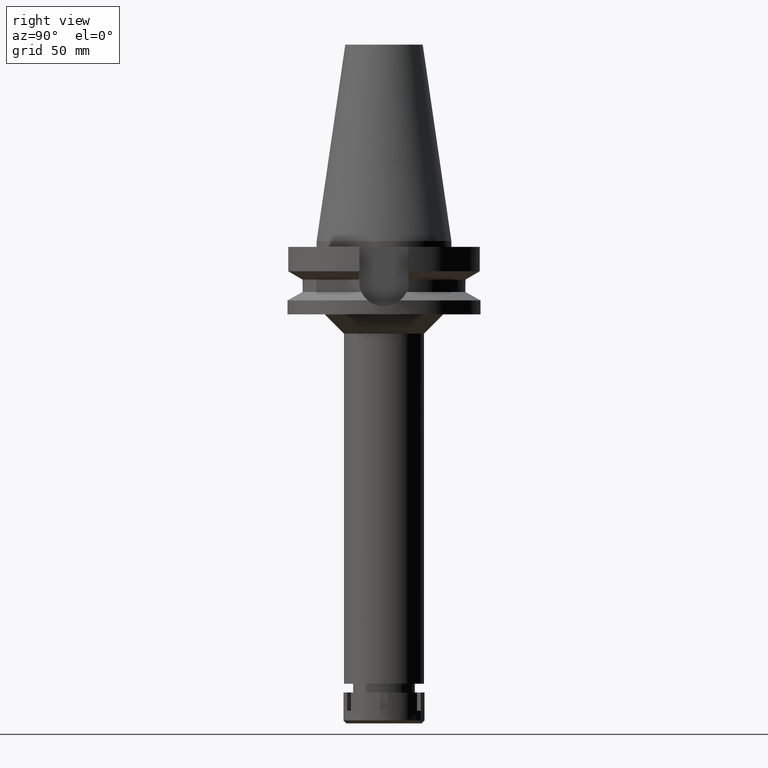
[diagram: clean part render]
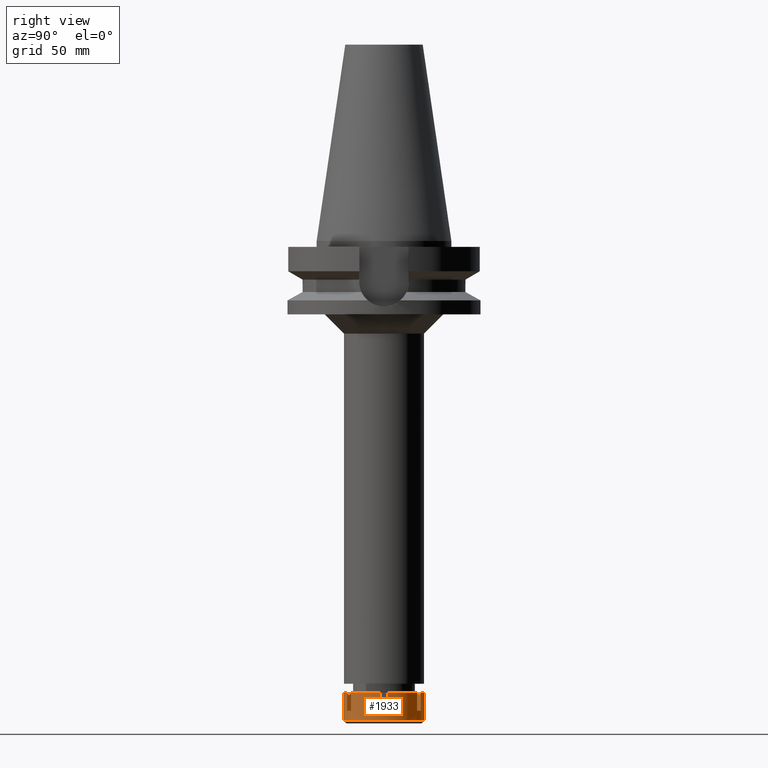
[diagram: same view with one face highlighted and labeled with its STEP entity id]
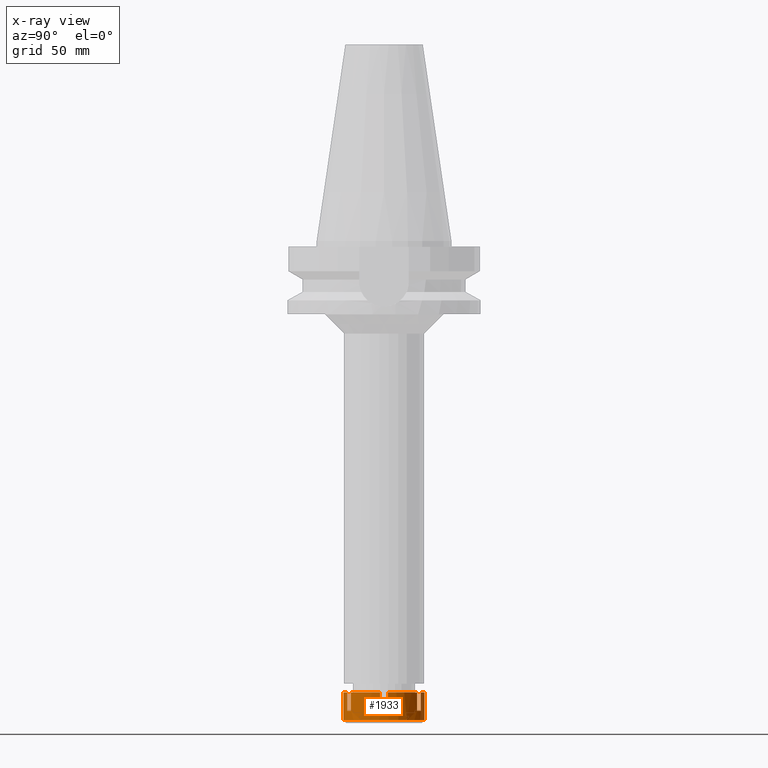
[diagram: x-ray of the same camera — body ghosted, the highlighted face saturated]
A machine part, right view. The second image highlights one B-rep face of the part: STEP entity #1933.
The next image is the same camera in x-ray: the body ghosted, the highlighted face saturated — about 0% of this face is hidden behind the body in this view.
In plain terms, the highlighted cylindrical surface (partial cylindrical patch) has radius 21 mm, axis along (0, 0, -1).
Its self-contained STEP definition (entity closure, byte-faithful):
#7 = CARTESIAN_POINT ( 'NONE',  ( 0.0000000000000000000, 0.0000000000000000000, 0.0000000000000000000 ) ) ;
#17 = ORIENTED_EDGE ( 'NONE', *, *, #3506, .T. ) ;
#30 = DIRECTION ( 'NONE',  ( 0.0000000000000000000, 0.0000000000000000000, -1.000000000000000000 ) ) ;
#50 = CARTESIAN_POINT ( 'NONE',  ( 12.18432328774999895, -17.10386699022999935, 0.0000000000000000000 ) ) ;
#54 = DIRECTION ( 'NONE',  ( 0.0000000000000000000, 0.0000000000000000000, -1.000000000000000000 ) ) ;
#64 = EDGE_CURVE ( 'NONE', #3304, #532, #1567, .T. ) ;
#75 = ORIENTED_EDGE ( 'NONE', *, *, #229, .F. ) ;
#93 = CIRCLE ( 'NONE', #3050, 21.00000000000000711 ) ;
#116 = VECTOR ( 'NONE', #2785, 1000.000000000000000 ) ;
#122 = CYLINDRICAL_SURFACE ( 'NONE', #278, 21.00000000000000000 ) ;
#137 = EDGE_CURVE ( 'NONE', #2713, #532, #334, .T. ) ;
#170 = DIRECTION ( 'NONE',  ( 0.0000000000000000000, 0.0000000000000000000, 1.000000000000000000 ) ) ;
#172 = CARTESIAN_POINT ( 'NONE',  ( 0.0000000000000000000, 0.0000000000000000000, -9.500000000000000000 ) ) ;
#187 = DIRECTION ( 'NONE',  ( 0.0000000000000000000, 0.0000000000000000000, -1.000000000000000000 ) ) ;
#199 = DIRECTION ( 'NONE',  ( 0.5802058708453158298, -0.8144698566777217597, 0.0000000000000000000 ) ) ;
#214 = CARTESIAN_POINT ( 'NONE',  ( 8.720221672615000585, -19.10386699022999935, 0.0000000000000000000 ) ) ;
#229 = EDGE_CURVE ( 'NONE', #1588, #1080, #3395, .T. ) ;
#234 = VERTEX_POINT ( 'NONE', #50 ) ;
#237 = AXIS2_PLACEMENT_3D ( 'NONE', #172, #2105, #730 ) ;
#240 = CARTESIAN_POINT ( 'NONE',  ( 12.18432328774999895, 17.10386699022999935, 0.0000000000000000000 ) ) ;
#274 = EDGE_CURVE ( 'NONE', #1949, #2956, #315, .T. ) ;
#278 = AXIS2_PLACEMENT_3D ( 'NONE', #710, #965, #3114 ) ;
#285 = CARTESIAN_POINT ( 'NONE',  ( 20.90454496036999998, 2.000000000000000000, -9.500000000000000000 ) ) ;
#300 = VERTEX_POINT ( 'NONE', #3215 ) ;
#305 = CARTESIAN_POINT ( 'NONE',  ( 0.0000000000000000000, 0.0000000000000000000, -14.50000000000000000 ) ) ;
#315 = LINE ( 'NONE', #2047, #2255 ) ;
#334 = LINE ( 'NONE', #898, #2198 ) ;
#394 = AXIS2_PLACEMENT_3D ( 'NONE', #2512, #2567, #2796 ) ;
#400 = ORIENTED_EDGE ( 'NONE', *, *, #3462, .T. ) ;
#431 = ORIENTED_EDGE ( 'NONE', *, *, #274, .T. ) ;
#438 = ORIENTED_EDGE ( 'NONE', *, *, #1612, .F. ) ;
#452 = VECTOR ( 'NONE', #187, 1000.000000000000000 ) ;
#456 = CIRCLE ( 'NONE', #2188, 20.99999999999999289 ) ;
#485 = ORIENTED_EDGE ( 'NONE', *, *, #1226, .T. ) ;
#532 = VERTEX_POINT ( 'NONE', #658 ) ;
#575 = VERTEX_POINT ( 'NONE', #1770 ) ;
#584 = CIRCLE ( 'NONE', #1981, 21.00000000000000000 ) ;
#658 = CARTESIAN_POINT ( 'NONE',  ( 8.720221672615000585, 19.10386699022999935, 0.0000000000000000000 ) ) ;
#710 = CARTESIAN_POINT ( 'NONE',  ( 0.0000000000000000000, 0.0000000000000000000, 0.0000000000000000000 ) ) ;
#721 = CARTESIAN_POINT ( 'NONE',  ( 8.720221672615998898, 19.10386699022999935, -9.500000000000000000 ) ) ;
#730 = DIRECTION ( 'NONE',  ( 0.4152486510768949035, 0.9097079519157886818, 0.0000000000000000000 ) ) ;
#787 = AXIS2_PLACEMENT_3D ( 'NONE', #2158, #2393, #1033 ) ;
#827 = DIRECTION ( 'NONE',  ( 0.0000000000000000000, 0.0000000000000000000, -1.000000000000000000 ) ) ;
#842 = ORIENTED_EDGE ( 'NONE', *, *, #2204, .T. ) ;
#898 = CARTESIAN_POINT ( 'NONE',  ( 8.720221672615000585, 19.10386699022999935, -9.500000000000000000 ) ) ;
#965 = DIRECTION ( 'NONE',  ( 0.0000000000000000000, 0.0000000000000000000, -1.000000000000000000 ) ) ;
#975 = VERTEX_POINT ( 'NONE', #3164 ) ;
#1033 = DIRECTION ( 'NONE',  ( 0.9954545219222313834, -0.09523809523810303213, 0.0000000000000000000 ) ) ;
#1068 = DIRECTION ( 'NONE',  ( 0.0000000000000000000, 0.0000000000000000000, -1.000000000000000000 ) ) ;
#1080 = VERTEX_POINT ( 'NONE', #1776 ) ;
#1106 = VECTOR ( 'NONE', #2335, 1000.000000000000000 ) ;
#1131 = DIRECTION ( 'NONE',  ( 0.0000000000000000000, 0.0000000000000000000, -1.000000000000000000 ) ) ;
#1160 = VECTOR ( 'NONE', #2549, 1000.000000000000000 ) ;
#1166 = ORIENTED_EDGE ( 'NONE', *, *, #137, .F. ) ;
#1171 = DIRECTION ( 'NONE',  ( 0.9954545219222313834, 0.09523809523810303213, 0.0000000000000000000 ) ) ;
#1179 = LINE ( 'NONE', #3381, #1106 ) ;
#1191 = DIRECTION ( 'NONE',  ( 0.0000000000000000000, 1.000000000000000000, 0.0000000000000000000 ) ) ;
#1226 = EDGE_CURVE ( 'NONE', #1588, #234, #2358, .T. ) ;
#1240 = CARTESIAN_POINT ( 'NONE',  ( 12.18432328774999895, 17.10386699022999935, -9.500000000000000000 ) ) ;
#1372 = LINE ( 'NONE', #240, #452 ) ;
#1409 = EDGE_CURVE ( 'NONE', #575, #975, #2764, .T. ) ;
#1506 = LINE ( 'NONE', #1761, #1754 ) ;
#1549 = CARTESIAN_POINT ( 'NONE',  ( 8.720221672615000585, -19.10386699022999935, 0.0000000000000000000 ) ) ;
#1567 = CIRCLE ( 'NONE', #1907, 21.00000000000000000 ) ;
#1588 = VERTEX_POINT ( 'NONE', #2309 ) ;
#1609 = CARTESIAN_POINT ( 'NONE',  ( 8.720221672615000585, -19.10386699022999935, -9.500000000000000000 ) ) ;
#1612 = EDGE_CURVE ( 'NONE', #575, #2411, #1372, .T. ) ;
#1691 = VERTEX_POINT ( 'NONE', #1609 ) ;
#1717 = FACE_OUTER_BOUND ( 'NONE', #3287, .T. ) ;
#1754 = VECTOR ( 'NONE', #54, 1000.000000000000000 ) ;
#1761 = CARTESIAN_POINT ( 'NONE',  ( 0.0000000000000000000, 21.00000000000000000, 0.0000000000000000000 ) ) ;
#1770 = CARTESIAN_POINT ( 'NONE',  ( 12.18432328774999895, 17.10386699022999935, 0.0000000000000000000 ) ) ;
#1776 = CARTESIAN_POINT ( 'NONE',  ( 20.90454496036999998, -2.000000000000000000, -9.500000000000000000 ) ) ;
#1806 = CIRCLE ( 'NONE', #237, 21.00000000000000711 ) ;
#1811 = CIRCLE ( 'NONE', #2103, 21.00000000000000711 ) ;
#1817 = LINE ( 'NONE', #1549, #1905 ) ;
#1828 = EDGE_CURVE ( 'NONE', #300, #1080, #456, .T. ) ;
#1846 = CARTESIAN_POINT ( 'NONE',  ( 0.0000000000000000000, 21.00000000000000000, 0.0000000000000000000 ) ) ;
#1905 = VECTOR ( 'NONE', #1068, 1000.000000000000000 ) ;
#1907 = AXIS2_PLACEMENT_3D ( 'NONE', #7, #1131, #1191 ) ;
#1933 = ADVANCED_FACE ( 'NONE', ( #1717 ), #122, .T. ) ;
#1936 = LINE ( 'NONE', #285, #116 ) ;
#1949 = VERTEX_POINT ( 'NONE', #2061 ) ;
#1981 = AXIS2_PLACEMENT_3D ( 'NONE', #305, #170, #3106 ) ;
#2047 = CARTESIAN_POINT ( 'NONE',  ( 0.0000000000000000000, -21.00000000000000000, 0.0000000000000000000 ) ) ;
#2061 = CARTESIAN_POINT ( 'NONE',  ( 0.0000000000000000000, -21.00000000000000000, 0.0000000000000000000 ) ) ;
#2103 = AXIS2_PLACEMENT_3D ( 'NONE', #3310, #827, #2737 ) ;
#2105 = DIRECTION ( 'NONE',  ( 0.0000000000000000000, 0.0000000000000000000, -1.000000000000000000 ) ) ;
#2158 = CARTESIAN_POINT ( 'NONE',  ( 0.0000000000000000000, 0.0000000000000000000, 0.0000000000000000000 ) ) ;
#2188 = AXIS2_PLACEMENT_3D ( 'NONE', #3580, #2235, #1171 ) ;
#2198 = VECTOR ( 'NONE', #3141, 1000.000000000000000 ) ;
#2204 = EDGE_CURVE ( 'NONE', #3262, #1691, #93, .T. ) ;
#2235 = DIRECTION ( 'NONE',  ( 0.0000000000000000000, 0.0000000000000000000, -1.000000000000000000 ) ) ;
#2255 = VECTOR ( 'NONE', #30, 1000.000000000000000 ) ;
#2309 = CARTESIAN_POINT ( 'NONE',  ( 20.90454496036999998, -2.000000000000000000, 0.0000000000000000000 ) ) ;
#2335 = DIRECTION ( 'NONE',  ( 0.0000000000000000000, 0.0000000000000000000, 1.000000000000000000 ) ) ;
#2358 = CIRCLE ( 'NONE', #787, 20.99999999999999289 ) ;
#2393 = DIRECTION ( 'NONE',  ( 0.0000000000000000000, 0.0000000000000000000, -1.000000000000000000 ) ) ;
#2411 = VERTEX_POINT ( 'NONE', #1240 ) ;
#2464 = ORIENTED_EDGE ( 'NONE', *, *, #1409, .T. ) ;
#2477 = ORIENTED_EDGE ( 'NONE', *, *, #2690, .F. ) ;
#2500 = CARTESIAN_POINT ( 'NONE',  ( 0.0000000000000000000, 21.00000000000000000, -14.50000000000000000 ) ) ;
#2512 = CARTESIAN_POINT ( 'NONE',  ( 0.0000000000000000000, 0.0000000000000000000, 0.0000000000000000000 ) ) ;
#2549 = DIRECTION ( 'NONE',  ( 0.0000000000000000000, 0.0000000000000000000, -1.000000000000000000 ) ) ;
#2567 = DIRECTION ( 'NONE',  ( 0.0000000000000000000, 0.0000000000000000000, -1.000000000000000000 ) ) ;
#2688 = CARTESIAN_POINT ( 'NONE',  ( 0.0000000000000000000, 0.0000000000000000000, -9.500000000000000000 ) ) ;
#2690 = EDGE_CURVE ( 'NONE', #2748, #1691, #1817, .T. ) ;
#2713 = VERTEX_POINT ( 'NONE', #721 ) ;
#2716 = CARTESIAN_POINT ( 'NONE',  ( 12.18432328774999895, -17.10386699022999935, -9.500000000000000000 ) ) ;
#2721 = ORIENTED_EDGE ( 'NONE', *, *, #3485, .F. ) ;
#2725 = DIRECTION ( 'NONE',  ( 0.0000000000000000000, 0.0000000000000000000, -1.000000000000000000 ) ) ;
#2737 = DIRECTION ( 'NONE',  ( 0.4152486510768949035, -0.9097079519157886818, 0.0000000000000000000 ) ) ;
#2748 = VERTEX_POINT ( 'NONE', #214 ) ;
#2749 = CARTESIAN_POINT ( 'NONE',  ( 0.0000000000000000000, -21.00000000000000000, -14.50000000000000000 ) ) ;
#2764 = CIRCLE ( 'NONE', #394, 20.99999999999999645 ) ;
#2785 = DIRECTION ( 'NONE',  ( 0.0000000000000000000, 0.0000000000000000000, 1.000000000000000000 ) ) ;
#2796 = DIRECTION ( 'NONE',  ( 0.5802058708454290725, 0.8144698566776411575, 0.0000000000000000000 ) ) ;
#2797 = CARTESIAN_POINT ( 'NONE',  ( 20.90454496036999998, -2.000000000000000000, 0.0000000000000000000 ) ) ;
#2859 = VERTEX_POINT ( 'NONE', #2500 ) ;
#2956 = VERTEX_POINT ( 'NONE', #2749 ) ;
#3022 = EDGE_CURVE ( 'NONE', #3304, #2859, #1506, .T. ) ;
#3050 = AXIS2_PLACEMENT_3D ( 'NONE', #2688, #2725, #199 ) ;
#3059 = EDGE_CURVE ( 'NONE', #3262, #234, #1179, .T. ) ;
#3089 = ORIENTED_EDGE ( 'NONE', *, *, #3299, .T. ) ;
#3106 = DIRECTION ( 'NONE',  ( 0.0000000000000000000, -1.000000000000000000, 0.0000000000000000000 ) ) ;
#3114 = DIRECTION ( 'NONE',  ( 0.0000000000000000000, -1.000000000000000000, 0.0000000000000000000 ) ) ;
#3141 = DIRECTION ( 'NONE',  ( 0.0000000000000000000, 0.0000000000000000000, 1.000000000000000000 ) ) ;
#3164 = CARTESIAN_POINT ( 'NONE',  ( 20.90454496036999998, 2.000000000000000000, 0.0000000000000000000 ) ) ;
#3215 = CARTESIAN_POINT ( 'NONE',  ( 20.90454496036999998, 2.000000000000000000, -9.500000000000000000 ) ) ;
#3262 = VERTEX_POINT ( 'NONE', #2716 ) ;
#3287 = EDGE_LOOP ( 'NONE', ( #438, #2464, #2721, #3455, #75, #485, #3531, #842, #2477, #400, #431, #17, #3440, #3424, #1166, #3089 ) ) ;
#3299 = EDGE_CURVE ( 'NONE', #2713, #2411, #1806, .T. ) ;
#3304 = VERTEX_POINT ( 'NONE', #1846 ) ;
#3310 = CARTESIAN_POINT ( 'NONE',  ( 0.0000000000000000000, 0.0000000000000000000, 0.0000000000000000000 ) ) ;
#3381 = CARTESIAN_POINT ( 'NONE',  ( 12.18432328774999895, -17.10386699022999935, -9.500000000000000000 ) ) ;
#3395 = LINE ( 'NONE', #2797, #1160 ) ;
#3424 = ORIENTED_EDGE ( 'NONE', *, *, #64, .T. ) ;
#3440 = ORIENTED_EDGE ( 'NONE', *, *, #3022, .F. ) ;
#3455 = ORIENTED_EDGE ( 'NONE', *, *, #1828, .T. ) ;
#3462 = EDGE_CURVE ( 'NONE', #2748, #1949, #1811, .T. ) ;
#3485 = EDGE_CURVE ( 'NONE', #300, #975, #1936, .T. ) ;
#3506 = EDGE_CURVE ( 'NONE', #2956, #2859, #584, .T. ) ;
#3531 = ORIENTED_EDGE ( 'NONE', *, *, #3059, .F. ) ;
#3580 = CARTESIAN_POINT ( 'NONE',  ( 0.0000000000000000000, 0.0000000000000000000, -9.500000000000000000 ) ) ;